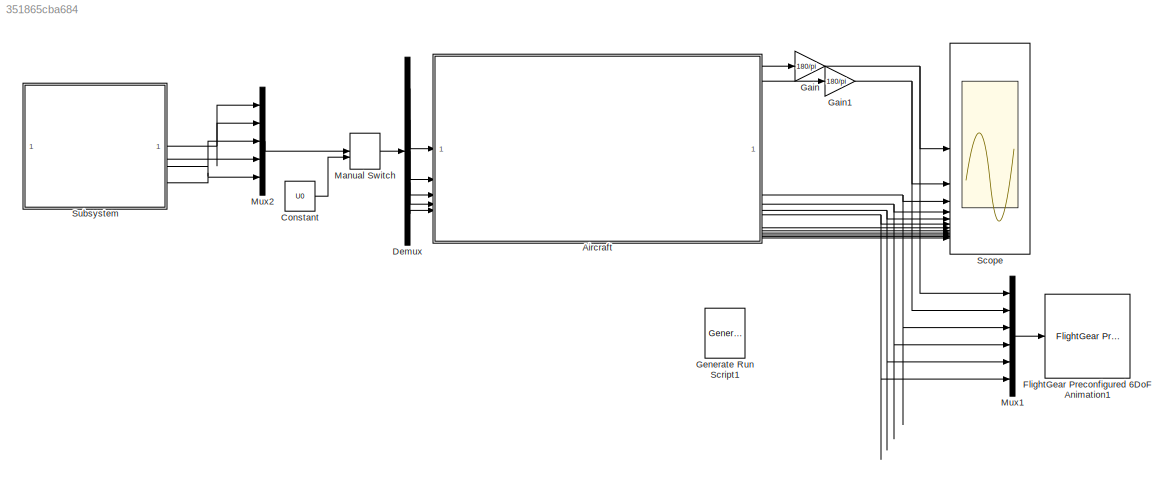
MODEL slx_351865cba684
KIND model
CONFIG AbsTol = auto
CONFIG EnableMultiTasking = off
CONFIG FixedStep = auto
CONFIG MaxStep = auto
CONFIG MinStep = auto
CONFIG RelTol = 1e-3
CONFIG SampleTimeConstraint = Unconstrained
CONFIG SolverName = VariableStepAuto
CONFIG StartTime = 0.0
CONFIG StopTime = TF
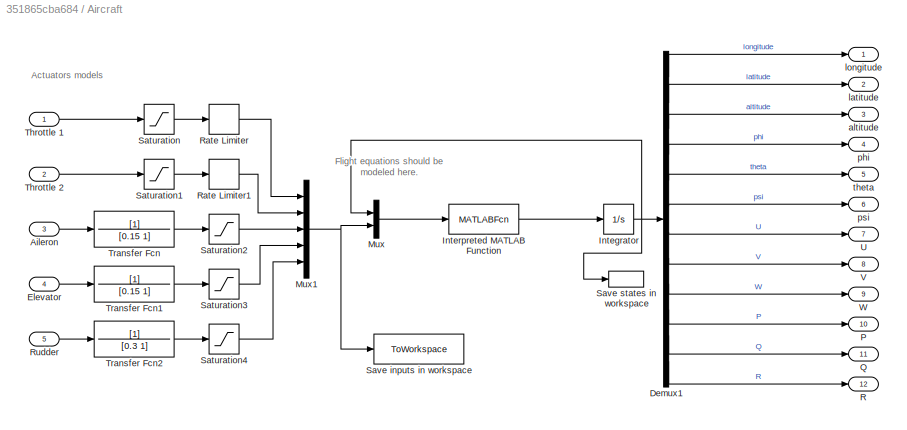
BLOCK [SubSystem] Aircraft
BLOCK [Inport] Aircraft/Aileron
  Port = 3
BLOCK [Demux] Aircraft/Demux1
  Outputs = 12
BLOCK [Inport] Aircraft/Elevator
  Port = 4
BLOCK [Integrator] Aircraft/Integrator
  InitialCondition = X0
BLOCK [MATLABFcn] Aircraft/Interpreted MATLAB Function
  MATLABFcn = aer404project2_2(u(1:12), u(13:17))
BLOCK [Mux] Aircraft/Mux
  DisplayOption = bar
  Inputs = 2
BLOCK [Mux] Aircraft/Mux1
  DisplayOption = bar
  Inputs = 5
BLOCK [Outport] Aircraft/P
  Port = 10
BLOCK [Outport] Aircraft/Q
  Port = 11
BLOCK [Outport] Aircraft/R
  Port = 12
BLOCK [RateLimiter] Aircraft/Rate Limiter
  FallingSlewLimit = -1.6
  RisingSlewLimit = 1.6
  SampleTimeMode = inherited
BLOCK [RateLimiter] Aircraft/Rate Limiter1
  FallingSlewLimit = -1.6
  RisingSlewLimit = 1.6
  SampleTimeMode = inherited
BLOCK [Inport] Aircraft/Rudder
  Port = 5
BLOCK [Saturate] Aircraft/Saturation
  LowerLimit = 0.5*(pi/180)
  UpperLimit = 1*(pi/180)
BLOCK [Saturate] Aircraft/Saturation1
  LowerLimit = 0.5*(pi/180)
  UpperLimit = 1*(pi/180)
BLOCK [Saturate] Aircraft/Saturation2
  LowerLimit = -25*(pi/180)
  UpperLimit = 25*(pi/180)
BLOCK [Saturate] Aircraft/Saturation3
  LowerLimit = -25*(pi/180)
  UpperLimit = 10*(pi/180)
BLOCK [Saturate] Aircraft/Saturation4
  LowerLimit = -30*(pi/180)
  UpperLimit = 30*(pi/180)
BLOCK [ToWorkspace] Aircraft/Save inputs in workspace
  FixptAsFi = on
  MaxDataPoints = inf
  SampleTime = -1
  SaveFormat = Timeseries
  VariableName = simU
BLOCK [ToWorkspace] Aircraft/Save states in workspace
  FixptAsFi = on
  MaxDataPoints = inf
  SampleTime = -1
  SaveFormat = Timeseries
  VariableName = simX
BLOCK [Inport] Aircraft/Throttle 1
BLOCK [Inport] Aircraft/Throttle 2
  Port = 2
BLOCK [TransferFcn] Aircraft/Transfer Fcn
  Denominator = [0.15 1]
BLOCK [TransferFcn] Aircraft/Transfer Fcn1
  Denominator = [0.15 1]
BLOCK [TransferFcn] Aircraft/Transfer Fcn2
  Denominator = [0.3 1]
BLOCK [Outport] Aircraft/U
  Port = 7
BLOCK [Outport] Aircraft/V
  Port = 8
BLOCK [Outport] Aircraft/W
  Port = 9
BLOCK [Outport] Aircraft/altitude
  Port = 3
BLOCK [Outport] Aircraft/latitude
  Port = 2
BLOCK [Outport] Aircraft/longitude
BLOCK [Outport] Aircraft/phi
  Port = 4
BLOCK [Outport] Aircraft/psi
  Port = 6
BLOCK [Outport] Aircraft/theta
  Port = 5
BLOCK [Constant] Constant
  Value = U0
BLOCK [Demux] Demux
  Outputs = 5
BLOCK [Reference] FlightGear Preconfigured 6DoF Animation1  REF=aerolibfltsims/FlightGear
Preconfigured
6DoF Animation
  SourceBlock = aerolibfltsims/FlightGear\nPreconfigured\n6DoF Animation
  SourceType = FlightGearQuick6DoFAnimation
BLOCK [Gain] Gain
  Gain = 180/pi
BLOCK [Gain] Gain1
  Gain = 180/pi
BLOCK [Reference] Generate Run Script1  REF=aerolibfltsims/Generate
Run Script
  SourceBlock = aerolibfltsims/Generate\nRun Script
  SourceType = Generate FlightGear Run Script
BLOCK [ManualSwitch] Manual Switch
  CurrentSetting = 0
BLOCK [Mux] Mux1
  DisplayOption = bar
  Inputs = 6
BLOCK [Mux] Mux2
  DisplayOption = bar
  Inputs = 5
BLOCK [Scope] Scope
  Floating = off
  NumInputPorts = 12
  ScopeSpecificationString = Simulink.scopes.TimeScopeBlockCfg('CurrentConfiguration', extmgr.ConfigurationSet(extmgr.Configuration('Core','General UI',true),extmgr.Configuration('Core','Source UI',true),extmgr.Configuration('Sources','WiredSimulink',true),extmgr.Configuration('Visuals','Time Domain',true,'SerializedDisplays',{struct('MinYLimReal','-79.62713','MaxYLimReal','-79.62453','YLabelReal','','MinYLimMag','0.00000','M...<+9030ch>
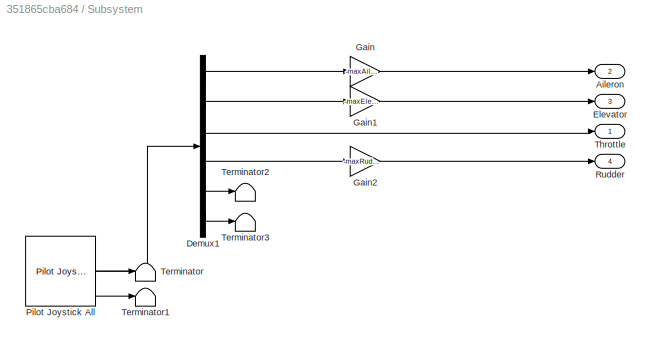
BLOCK [SubSystem] Subsystem
BLOCK [Outport] Subsystem/Aileron
  Port = 2
BLOCK [Demux] Subsystem/Demux1
  Outputs = 6
BLOCK [Outport] Subsystem/Elevator
  Port = 3
BLOCK [Gain] Subsystem/Gain
  Gain = -maxAileronDeflection
BLOCK [Gain] Subsystem/Gain1
  Gain = -maxElevatorDeflection
BLOCK [Gain] Subsystem/Gain2
  Gain = -maxRudderDeflection
BLOCK [Reference] Subsystem/Pilot Joystick All  REF=aerolibanimutils/Pilot Joystick
  SourceBlock = aerolibanimutils/Pilot Joystick
  SourceType = PilotJoystick
BLOCK [Outport] Subsystem/Rudder
  Port = 4
BLOCK [Terminator] Subsystem/Terminator
BLOCK [Terminator] Subsystem/Terminator1
BLOCK [Terminator] Subsystem/Terminator2
BLOCK [Terminator] Subsystem/Terminator3
BLOCK [Outport] Subsystem/Throttle
ANNOTATION Aircraft: Actuators models
ANNOTATION Aircraft: Flight equations should be modeled here.
LINE Aircraft/Aileron:1 -> Aircraft/Transfer Fcn:1
LINE Aircraft/Demux1:1 -> Aircraft/longitude:1
LINE Aircraft/Demux1:10 -> Aircraft/P:1
LINE Aircraft/Demux1:11 -> Aircraft/Q:1
LINE Aircraft/Demux1:12 -> Aircraft/R:1
LINE Aircraft/Demux1:2 -> Aircraft/latitude:1
LINE Aircraft/Demux1:3 -> Aircraft/altitude:1
LINE Aircraft/Demux1:4 -> Aircraft/phi:1
LINE Aircraft/Demux1:5 -> Aircraft/theta:1
LINE Aircraft/Demux1:6 -> Aircraft/psi:1
LINE Aircraft/Demux1:7 -> Aircraft/U:1
LINE Aircraft/Demux1:8 -> Aircraft/V:1
LINE Aircraft/Demux1:9 -> Aircraft/W:1
LINE Aircraft/Elevator:1 -> Aircraft/Transfer Fcn1:1
NET Aircraft/Integrator:1 -> Aircraft/Demux1:1, Aircraft/Mux:1, Aircraft/Save states in workspace:1
LINE Aircraft/Interpreted MATLAB Function:1 -> Aircraft/Integrator:1
NET Aircraft/Mux1:1 -> Aircraft/Mux:2, Aircraft/Save inputs in workspace:1
LINE Aircraft/Mux:1 -> Aircraft/Interpreted MATLAB Function:1
LINE Aircraft/Rate Limiter1:1 -> Aircraft/Mux1:2
LINE Aircraft/Rate Limiter:1 -> Aircraft/Mux1:1
LINE Aircraft/Rudder:1 -> Aircraft/Transfer Fcn2:1
LINE Aircraft/Saturation1:1 -> Aircraft/Rate Limiter1:1
LINE Aircraft/Saturation2:1 -> Aircraft/Mux1:3
LINE Aircraft/Saturation3:1 -> Aircraft/Mux1:4
LINE Aircraft/Saturation4:1 -> Aircraft/Mux1:5
LINE Aircraft/Saturation:1 -> Aircraft/Rate Limiter:1
LINE Aircraft/Throttle 1:1 -> Aircraft/Saturation:1
LINE Aircraft/Throttle 2:1 -> Aircraft/Saturation1:1
LINE Aircraft/Transfer Fcn1:1 -> Aircraft/Saturation3:1
LINE Aircraft/Transfer Fcn2:1 -> Aircraft/Saturation4:1
LINE Aircraft/Transfer Fcn:1 -> Aircraft/Saturation2:1
LINE Aircraft:1 -> Gain:1
LINE Aircraft:10 -> Scope:10
LINE Aircraft:11 -> Scope:11
LINE Aircraft:12 -> Scope:12
LINE Aircraft:2 -> Gain1:1
NET Aircraft:3 -> Mux1:3, Scope:3
NET Aircraft:4 -> Mux1:4, Scope:4
NET Aircraft:5 -> Mux1:5, Scope:5
NET Aircraft:6 -> Mux1:6, Scope:6
LINE Aircraft:7 -> Scope:7
LINE Aircraft:8 -> Scope:8
LINE Aircraft:9 -> Scope:9
LINE Constant:1 -> Manual Switch:2
LINE Demux:1 -> Aircraft:1
LINE Demux:2 -> Aircraft:2
LINE Demux:3 -> Aircraft:3
LINE Demux:4 -> Aircraft:4
LINE Demux:5 -> Aircraft:5
NET Gain1:1 -> Mux1:2, Scope:2
NET Gain:1 -> Mux1:1, Scope:1
LINE Manual Switch:1 -> Demux:1
LINE Mux1:1 -> FlightGear Preconfigured 6DoF Animation1:1
LINE Mux2:1 -> Manual Switch:1
LINE Subsystem/Demux1:1 -> Subsystem/Gain:1
LINE Subsystem/Demux1:2 -> Subsystem/Gain1:1
LINE Subsystem/Demux1:3 -> Subsystem/Throttle:1
LINE Subsystem/Demux1:4 -> Subsystem/Gain2:1
LINE Subsystem/Demux1:5 -> Subsystem/Terminator2:1
LINE Subsystem/Demux1:6 -> Subsystem/Terminator3:1
LINE Subsystem/Gain1:1 -> Subsystem/Elevator:1
LINE Subsystem/Gain2:1 -> Subsystem/Rudder:1
LINE Subsystem/Gain:1 -> Subsystem/Aileron:1
LINE Subsystem/Pilot Joystick All:1 -> Subsystem/Demux1:1
LINE Subsystem/Pilot Joystick All:2 -> Subsystem/Terminator:1
LINE Subsystem/Pilot Joystick All:3 -> Subsystem/Terminator1:1
NET Subsystem:1 -> Mux2:1, Mux2:2
LINE Subsystem:2 -> Mux2:3
LINE Subsystem:3 -> Mux2:4
LINE Subsystem:4 -> Mux2:5
note: NET lines group one-source signal fan-out (src -> all destinations, sorted); 1:1 wires keep LINE
